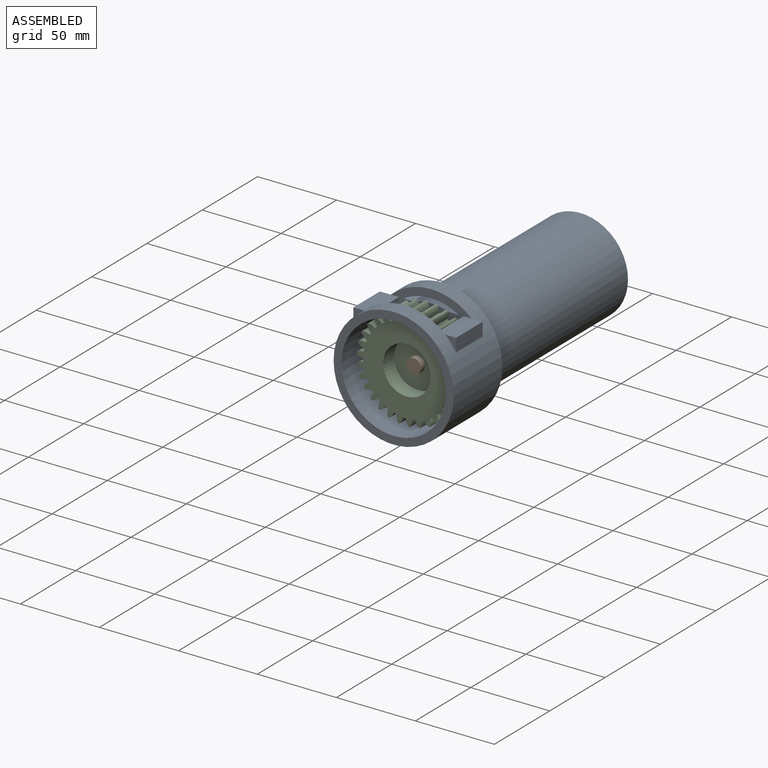
[diagram: assembled view]
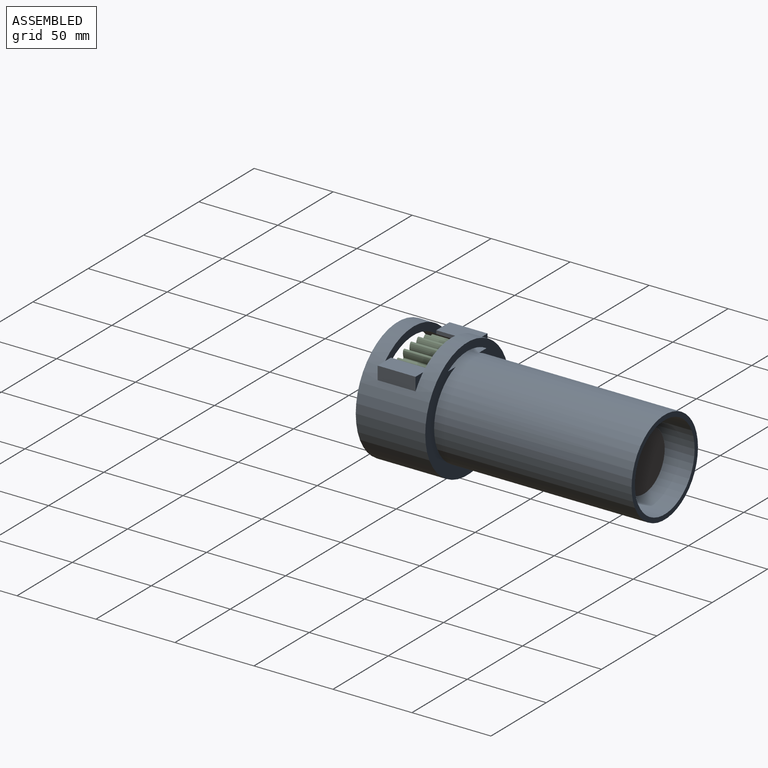
[diagram: assembled view, second angle]
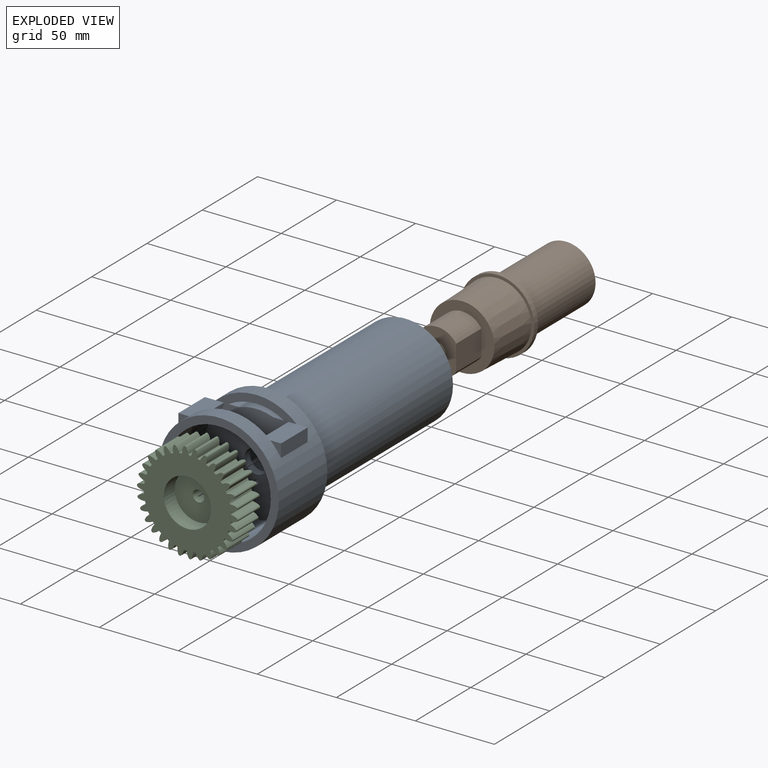
[diagram: exploded view]
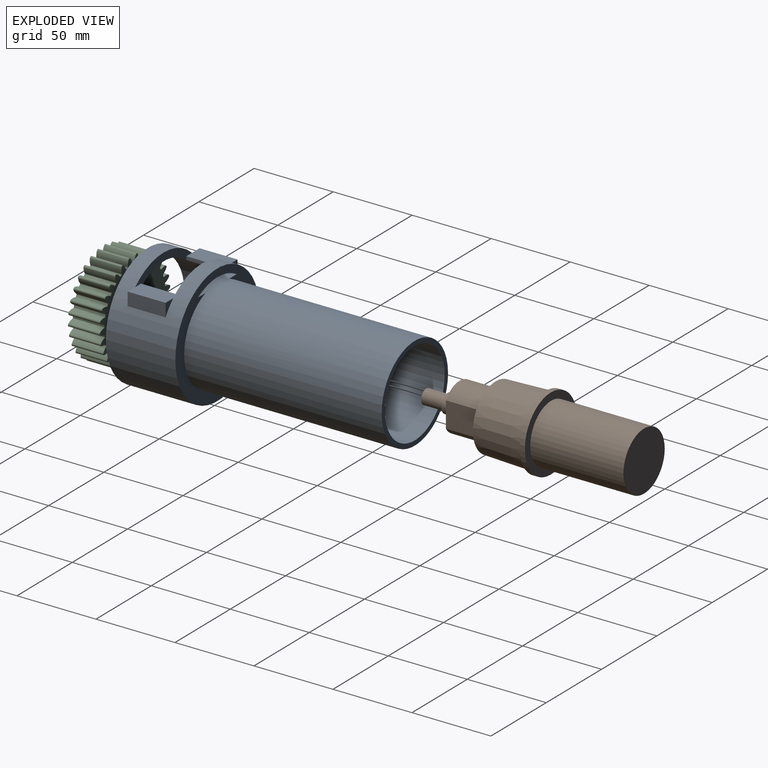
[diagram: exploded view, second angle]
ASSEMBLY  parts=3 mates=2
PART A: 31 faces, bbox 76x169x76 mm
  f0: plane 24x12mm, normal (0,0,1), area 288mm2, adj f3,f25,f26,f27,f28,f29
  f1: cylinder r=33mm len=66mm, axis (0,-1,0), area 5988mm2, adj f3,f20,f28,f29,f30
  f2: cylinder r=38mm len=76mm, axis (0,-1,0), area 8634mm2, adj f3,f16,f20,f22,f23,f24,f25,f26
  f3: plane 71x66mm, normal (0,-1,0), area 3379.6mm2, adj f0,f1,f2,f4,f12,f13,f14,f17
  f4: cylinder r=30mm len=135mm, axis (0,-1,0), area 23782.3mm2, adj f3,f6,f16,f17,f18
  f5: cylinder r=27mm len=110mm, axis (0,-1,0), area 18661.1mm2, adj f6,f11
  f6: plane 60x60mm, normal (0,1,0), area 537.2mm2, adj f4,f5
  f7: cylinder r=14.7mm len=24.6mm, axis (0,-1,0), area 582.9mm2, adj f8,f10,f11,f15
  f8: plane 20x16.1mm, normal (-1,0,0), area 322mm2, adj f7,f9,f11,f15
  f9: cylinder r=14.7mm len=24.6mm, axis (0,-1,0), area 582.9mm2, adj f8,f10,f11,f15
  f10: plane 20x16.1mm, normal (1,0,0), area 322mm2, adj f7,f9,f11,f15
  f11: plane 54x54mm, normal (0,1,0), area 1663.8mm2, adj f5,f7,f8,f9,f10
  f12: cylinder r=7.5mm len=15mm, axis (0,-1,0), area 235.6mm2, adj f3,f15
  f13: cylinder r=1.6mm len=5mm, axis (0,-1,0), area 50.3mm2, adj f3,f15
  f14: cylinder r=1.6mm len=5mm, axis (0,-1,0), area 50.3mm2, adj f3,f15
  f15: plane 29.4x24.6mm, normal (0,1,0), area 433.6mm2, adj f7,f8,f9,f10,f12,f13,f14
  f16: plane 76x76mm, normal (0,1,0), area 1619.6mm2, adj f2,f4,f17,f18,f19
  f17: plane 10x6.69mm, normal (0,0,1), area 66.9mm2, adj f3,f4,f16,f19
  f18: plane 10x6.69mm, normal (0,0,1), area 66.9mm2, adj f3,f4,f16,f19
  f19: cylinder r=33mm len=34.93mm, axis (0,-1,0), area 368.1mm2, adj f3,f16,f17,f18
  f20: plane 76x76mm, normal (0,-1,0), area 1115.3mm2, adj f1,f2
  f21: plane 24x12mm, normal (0,0,1), area 288mm2, adj f3,f22,f23,f24,f28,f30
  f22: plane 24x8.31mm, normal (-1,0,0), area 199.4mm2, adj f2,f21,f23,f24
  f23: plane 8.31x6.81mm, normal (0,-1,0), area 25.6mm2, adj f2,f21,f22
  f24: plane 8.31x6.81mm, normal (0,1,0), area 25.6mm2, adj f2,f21,f22
  f25: plane 24x8.31mm, normal (1,0,0), area 199.4mm2, adj f0,f2,f26,f27
  f26: plane 8.31x6.81mm, normal (0,-1,0), area 25.6mm2, adj f0,f2,f25
  f27: plane 8.31x6.81mm, normal (0,1,0), area 25.6mm2, adj f0,f2,f25
  f28: plane 51.38x12.14mm, normal (0,1,0), area 240.6mm2, adj f0,f1,f2,f21,f29,f30
  f29: plane 24x2.14mm, normal (-1,0,0), area 51.4mm2, adj f0,f1,f3,f28
  f30: plane 24x2.14mm, normal (1,0,0), area 51.4mm2, adj f1,f3,f21,f28
PART B: 16 faces, bbox 47x137.9x47 mm
  f0: plane 41x41mm, normal (0,-1,0), area 699.9mm2, adj f5,f7,f8,f9,f10
  f1: cylinder r=18.65mm len=59mm, axis (0,-1,0), area 6913.7mm2, adj f2,f4
  f2: plane 37.3x37.3mm, normal (0,1,0), area 1092.7mm2, adj f1
  f3: cylinder r=23.5mm len=47mm, axis (0,1,0), area 487.3mm2, adj f4,f6
  f4: plane 47x47mm, normal (0,1,0), area 642.2mm2, adj f1,f3
  f5: cone r=20.5mm half-angle=2deg, axis (0,1,0), area 4195.2mm2, adj f0,f6
  f6: plane 47x47mm, normal (0,-1,0), area 269.2mm2, adj f3,f5
  f7: plane 22.9x16.22mm, normal (1,0,0), area 371.5mm2, adj f0,f8,f10,f11
  f8: cylinder r=14.65mm len=24.4mm, axis (0,1,0), area 660.3mm2, adj f0,f7,f9,f11
  f9: plane 22.9x16.22mm, normal (-1,0,0), area 371.5mm2, adj f0,f8,f10,f11
  f10: cylinder r=14.65mm len=24.4mm, axis (0,1,0), area 660.3mm2, adj f0,f7,f9,f11
  f11: plane 29.3x24.4mm, normal (0,-1,0), area 507.2mm2, adj f7,f8,f9,f10,f12
  f12: cylinder r=6mm len=12mm, axis (0,1,0), area 271.4mm2, adj f11,f13
  f13: plane 12x12mm, normal (0,-1,0), area 46.6mm2, adj f12,f14
  f14: cylinder r=4.6mm len=13.8mm, axis (0,1,0), area 398.9mm2, adj f13,f15
  f15: plane 9.2x9.2mm, normal (0,-1,0), area 66.5mm2, adj f14
PART C: 245 faces, bbox 63.9x20x63.9 mm
  f0: cylinder r=3.6mm len=10mm, axis (0,1,0), area 226.2mm2, adj f35,f244
  f1: cylinder r=27.5mm len=20mm, axis (0,1,0), area 19.4mm2, adj f34,f35,f172,f179
  f2: cylinder r=27.5mm len=20mm, axis (0,1,0), area 19.4mm2, adj f34,f35,f178,f186
  f3: cylinder r=27.5mm len=20mm, axis (0,1,0), area 19.4mm2, adj f34,f35,f185,f193
  f4: cylinder r=27.5mm len=20mm, axis (0,1,0), area 19.4mm2, adj f34,f35,f192,f200
  f5: cylinder r=27.5mm len=20mm, axis (0,1,0), area 19.4mm2, adj f34,f35,f199,f207
  f6: cylinder r=27.5mm len=20mm, axis (0,1,0), area 19.4mm2, adj f34,f35,f206,f214
  f7: cylinder r=27.5mm len=20mm, axis (0,1,0), area 19.4mm2, adj f34,f35,f213,f221
  f8: cylinder r=27.5mm len=20mm, axis (0,1,0), area 19.4mm2, adj f34,f35,f220,f228
  f9: cylinder r=27.5mm len=20mm, axis (0,1,0), area 19.4mm2, adj f34,f35,f227,f235
  f10: cylinder r=27.5mm len=20mm, axis (0,1,0), area 19.4mm2, adj f34,f35,f234,f242
  f11: cylinder r=27.5mm len=20mm, axis (0,1,0), area 19.4mm2, adj f34,f35,f46,f241
  f12: cylinder r=27.5mm len=20mm, axis (0,1,0), area 19.4mm2, adj f34,f35,f45,f53
  f13: cylinder r=27.5mm len=20mm, axis (0,1,0), area 19.4mm2, adj f34,f35,f52,f60
  f14: cylinder r=27.5mm len=20mm, axis (0,1,0), area 19.4mm2, adj f34,f35,f59,f67
  f15: cylinder r=27.5mm len=20mm, axis (0,1,0), area 19.4mm2, adj f34,f35,f66,f74
  f16: cylinder r=27.5mm len=20mm, axis (0,1,0), area 19.4mm2, adj f34,f35,f73,f81
  f17: cylinder r=27.5mm len=20mm, axis (0,1,0), area 19.4mm2, adj f34,f35,f80,f88
  f18: cylinder r=27.5mm len=20mm, axis (0,1,0), area 19.4mm2, adj f34,f35,f87,f95
  f19: cylinder r=27.5mm len=20mm, axis (0,1,0), area 19.4mm2, adj f34,f35,f94,f102
  f20: cylinder r=27.5mm len=20mm, axis (0,1,0), area 19.4mm2, adj f34,f35,f101,f109
  f21: cylinder r=27.5mm len=20mm, axis (0,1,0), area 19.4mm2, adj f34,f35,f108,f116
  f22: cylinder r=27.5mm len=20mm, axis (0,1,0), area 19.4mm2, adj f34,f35,f115,f123
  f23: cylinder r=27.5mm len=20mm, axis (0,1,0), area 19.4mm2, adj f34,f35,f122,f130
  f24: cylinder r=27.5mm len=20mm, axis (0,1,0), area 19.4mm2, adj f34,f35,f129,f137
  f25: cylinder r=27.5mm len=20mm, axis (0,1,0), area 19.4mm2, adj f34,f35,f151,f158
  f26: cylinder r=27.5mm len=20mm, axis (0,1,0), area 19.4mm2, adj f34,f35,f136,f144
  f27: cylinder r=27.5mm len=20mm, axis (0,1,0), area 19.4mm2, adj f34,f35,f39,f143
  f28: cylinder r=27.5mm len=20mm, axis (0,1,0), area 19.4mm2, adj f34,f35,f38,f150
  f29: cylinder r=27.5mm len=20mm, axis (0,1,0), area 19.4mm2, adj f34,f35,f165,f171
  f30: cylinder r=27.5mm len=20mm, axis (0,1,0), area 19.4mm2, adj f34,f35,f157,f164
  f31: cylinder r=7.5mm len=20mm, axis (0,1,0), area 76.8mm2, adj f34,f35,f36,f38
  f32: cylinder r=32mm len=20mm, axis (0,1,0), area 0mm2, adj f34,f35,f36,f37
  f33: cylinder r=7.5mm len=20mm, axis (0,1,0), area 76.8mm2, adj f34,f35,f37,f39
  f34: plane 63.92x63.92mm, normal (0,-1,0), area 2077.6mm2, adj f1,f2,f3,f4,f5,f6,f7,f8
  f35: plane 63.92x63.92mm, normal (0,1,0), area 2743.8mm2, adj f0,f1,f2,f3,f4,f5,f6,f7
  f36: cylinder r=1mm len=20mm, axis (0,1,0), area 20.5mm2, adj f31,f32,f34,f35
  f37: cylinder r=1mm len=20mm, axis (0,1,0), area 20.5mm2, adj f32,f33,f34,f35
  f38: cylinder r=0.5mm len=20mm, axis (0,-1,0), area 14.5mm2, adj f28,f31,f34,f35
  f39: cylinder r=0.5mm len=20mm, axis (0,-1,0), area 14.5mm2, adj f27,f33,f34,f35
  f40: cylinder r=7.5mm len=20mm, axis (0,1,0), area 76.8mm2, adj f34,f35,f41,f45
  f41: cylinder r=1mm len=20mm, axis (0,1,0), area 20.5mm2, adj f34,f35,f40,f42
  f42: cylinder r=32mm len=20mm, axis (0,1,0), area 0mm2, adj f34,f35,f41,f43
  f43: cylinder r=1mm len=20mm, axis (0,1,0), area 20.5mm2, adj f34,f35,f42,f44
  f44: cylinder r=7.5mm len=20mm, axis (0,1,0), area 76.8mm2, adj f34,f35,f43,f46
  f45: cylinder r=0.5mm len=20mm, axis (0,-1,0), area 14.5mm2, adj f12,f34,f35,f40
  f46: cylinder r=0.5mm len=20mm, axis (0,-1,0), area 14.5mm2, adj f11,f34,f35,f44
  f47: cylinder r=7.5mm len=20mm, axis (0,1,0), area 76.8mm2, adj f34,f35,f48,f52
  f48: cylinder r=1mm len=20mm, axis (0,1,0), area 20.5mm2, adj f34,f35,f47,f49
  f49: cylinder r=32mm len=20mm, axis (0,1,0), area 0mm2, adj f34,f35,f48,f50
  f50: cylinder r=1mm len=20mm, axis (0,1,0), area 20.5mm2, adj f34,f35,f49,f51
  f51: cylinder r=7.5mm len=20mm, axis (0,1,0), area 76.8mm2, adj f34,f35,f50,f53
  f52: cylinder r=0.5mm len=20mm, axis (0,-1,0), area 14.5mm2, adj f13,f34,f35,f47
  f53: cylinder r=0.5mm len=20mm, axis (0,-1,0), area 14.5mm2, adj f12,f34,f35,f51
  f54: cylinder r=7.5mm len=20mm, axis (0,1,0), area 76.8mm2, adj f34,f35,f55,f59
  f55: cylinder r=1mm len=20mm, axis (0,1,0), area 20.5mm2, adj f34,f35,f54,f56
  f56: cylinder r=32mm len=20mm, axis (0,1,0), area 0mm2, adj f34,f35,f55,f57
  f57: cylinder r=1mm len=20mm, axis (0,1,0), area 20.5mm2, adj f34,f35,f56,f58
  f58: cylinder r=7.5mm len=20mm, axis (0,1,0), area 76.8mm2, adj f34,f35,f57,f60
  f59: cylinder r=0.5mm len=20mm, axis (0,-1,0), area 14.5mm2, adj f14,f34,f35,f54
  f60: cylinder r=0.5mm len=20mm, axis (0,-1,0), area 14.5mm2, adj f13,f34,f35,f58
  f61: cylinder r=7.5mm len=20mm, axis (0,1,0), area 76.8mm2, adj f34,f35,f62,f66
  f62: cylinder r=1mm len=20mm, axis (0,1,0), area 20.5mm2, adj f34,f35,f61,f63
  f63: cylinder r=32mm len=20mm, axis (0,1,0), area 0mm2, adj f34,f35,f62,f64
  f64: cylinder r=1mm len=20mm, axis (0,1,0), area 20.5mm2, adj f34,f35,f63,f65
  f65: cylinder r=7.5mm len=20mm, axis (0,1,0), area 76.8mm2, adj f34,f35,f64,f67
  f66: cylinder r=0.5mm len=20mm, axis (0,-1,0), area 14.5mm2, adj f15,f34,f35,f61
  f67: cylinder r=0.5mm len=20mm, axis (0,-1,0), area 14.5mm2, adj f14,f34,f35,f65
  f68: cylinder r=7.5mm len=20mm, axis (0,1,0), area 76.8mm2, adj f34,f35,f69,f73
  f69: cylinder r=1mm len=20mm, axis (0,1,0), area 20.5mm2, adj f34,f35,f68,f70
  f70: cylinder r=32mm len=20mm, axis (0,1,0), area 0mm2, adj f34,f35,f69,f71
  f71: cylinder r=1mm len=20mm, axis (0,1,0), area 20.5mm2, adj f34,f35,f70,f72
  f72: cylinder r=7.5mm len=20mm, axis (0,1,0), area 76.8mm2, adj f34,f35,f71,f74
  f73: cylinder r=0.5mm len=20mm, axis (0,-1,0), area 14.5mm2, adj f16,f34,f35,f68
  f74: cylinder r=0.5mm len=20mm, axis (0,-1,0), area 14.5mm2, adj f15,f34,f35,f72
  f75: cylinder r=7.5mm len=20mm, axis (0,1,0), area 76.8mm2, adj f34,f35,f76,f80
  f76: cylinder r=1mm len=20mm, axis (0,1,0), area 20.5mm2, adj f34,f35,f75,f77
  f77: cylinder r=32mm len=20mm, axis (0,1,0), area 0mm2, adj f34,f35,f76,f78
  f78: cylinder r=1mm len=20mm, axis (0,1,0), area 20.5mm2, adj f34,f35,f77,f79
  f79: cylinder r=7.5mm len=20mm, axis (0,1,0), area 76.8mm2, adj f34,f35,f78,f81
  f80: cylinder r=0.5mm len=20mm, axis (0,-1,0), area 14.5mm2, adj f17,f34,f35,f75
  f81: cylinder r=0.5mm len=20mm, axis (0,-1,0), area 14.5mm2, adj f16,f34,f35,f79
  f82: cylinder r=7.5mm len=20mm, axis (0,1,0), area 76.8mm2, adj f34,f35,f83,f87
  f83: cylinder r=1mm len=20mm, axis (0,1,0), area 20.5mm2, adj f34,f35,f82,f84
  f84: cylinder r=32mm len=20mm, axis (0,1,0), area 0mm2, adj f34,f35,f83,f85
  f85: cylinder r=1mm len=20mm, axis (0,1,0), area 20.5mm2, adj f34,f35,f84,f86
  f86: cylinder r=7.5mm len=20mm, axis (0,1,0), area 76.8mm2, adj f34,f35,f85,f88
  f87: cylinder r=0.5mm len=20mm, axis (0,-1,0), area 14.5mm2, adj f18,f34,f35,f82
  f88: cylinder r=0.5mm len=20mm, axis (0,-1,0), area 14.5mm2, adj f17,f34,f35,f86
  f89: cylinder r=7.5mm len=20mm, axis (0,1,0), area 76.8mm2, adj f34,f35,f90,f94
  f90: cylinder r=1mm len=20mm, axis (0,1,0), area 20.5mm2, adj f34,f35,f89,f91
  f91: cylinder r=32mm len=20mm, axis (0,1,0), area 0mm2, adj f34,f35,f90,f92
  f92: cylinder r=1mm len=20mm, axis (0,1,0), area 20.5mm2, adj f34,f35,f91,f93
  f93: cylinder r=7.5mm len=20mm, axis (0,1,0), area 76.8mm2, adj f34,f35,f92,f95
  f94: cylinder r=0.5mm len=20mm, axis (0,-1,0), area 14.5mm2, adj f19,f34,f35,f89
  f95: cylinder r=0.5mm len=20mm, axis (0,-1,0), area 14.5mm2, adj f18,f34,f35,f93
  f96: cylinder r=7.5mm len=20mm, axis (0,1,0), area 76.8mm2, adj f34,f35,f97,f101
  f97: cylinder r=1mm len=20mm, axis (0,1,0), area 20.5mm2, adj f34,f35,f96,f98
  f98: cylinder r=32mm len=20mm, axis (0,1,0), area 0mm2, adj f34,f35,f97,f99
  f99: cylinder r=1mm len=20mm, axis (0,1,0), area 20.5mm2, adj f34,f35,f98,f100
  f100: cylinder r=7.5mm len=20mm, axis (0,1,0), area 76.8mm2, adj f34,f35,f99,f102
  f101: cylinder r=0.5mm len=20mm, axis (0,-1,0), area 14.5mm2, adj f20,f34,f35,f96
  f102: cylinder r=0.5mm len=20mm, axis (0,-1,0), area 14.5mm2, adj f19,f34,f35,f100
  f103: cylinder r=7.5mm len=20mm, axis (0,1,0), area 76.8mm2, adj f34,f35,f104,f108
  f104: cylinder r=1mm len=20mm, axis (0,1,0), area 20.5mm2, adj f34,f35,f103,f105
  f105: cylinder r=32mm len=20mm, axis (0,1,0), area 0mm2, adj f34,f35,f104,f106
  f106: cylinder r=1mm len=20mm, axis (0,1,0), area 20.5mm2, adj f34,f35,f105,f107
  f107: cylinder r=7.5mm len=20mm, axis (0,1,0), area 76.8mm2, adj f34,f35,f106,f109
  f108: cylinder r=0.5mm len=20mm, axis (0,-1,0), area 14.5mm2, adj f21,f34,f35,f103
  f109: cylinder r=0.5mm len=20mm, axis (0,-1,0), area 14.5mm2, adj f20,f34,f35,f107
  f110: cylinder r=7.5mm len=20mm, axis (0,1,0), area 76.8mm2, adj f34,f35,f111,f115
  f111: cylinder r=1mm len=20mm, axis (0,1,0), area 20.5mm2, adj f34,f35,f110,f112
  f112: cylinder r=32mm len=20mm, axis (0,1,0), area 0mm2, adj f34,f35,f111,f113
  f113: cylinder r=1mm len=20mm, axis (0,1,0), area 20.5mm2, adj f34,f35,f112,f114
  f114: cylinder r=7.5mm len=20mm, axis (0,1,0), area 76.8mm2, adj f34,f35,f113,f116
  f115: cylinder r=0.5mm len=20mm, axis (0,-1,0), area 14.5mm2, adj f22,f34,f35,f110
  f116: cylinder r=0.5mm len=20mm, axis (0,-1,0), area 14.5mm2, adj f21,f34,f35,f114
  f117: cylinder r=7.5mm len=20mm, axis (0,1,0), area 76.8mm2, adj f34,f35,f118,f122
  f118: cylinder r=1mm len=20mm, axis (0,1,0), area 20.5mm2, adj f34,f35,f117,f119
  f119: cylinder r=32mm len=20mm, axis (0,1,0), area 0mm2, adj f34,f35,f118,f120
  f120: cylinder r=1mm len=20mm, axis (0,1,0), area 20.5mm2, adj f34,f35,f119,f121
  f121: cylinder r=7.5mm len=20mm, axis (0,1,0), area 76.8mm2, adj f34,f35,f120,f123
  f122: cylinder r=0.5mm len=20mm, axis (0,-1,0), area 14.5mm2, adj f23,f34,f35,f117
  f123: cylinder r=0.5mm len=20mm, axis (0,-1,0), area 14.5mm2, adj f22,f34,f35,f121
  f124: cylinder r=7.5mm len=20mm, axis (0,1,0), area 76.8mm2, adj f34,f35,f125,f129
  f125: cylinder r=1mm len=20mm, axis (0,1,0), area 20.5mm2, adj f34,f35,f124,f126
  f126: cylinder r=32mm len=20mm, axis (0,1,0), area 0mm2, adj f34,f35,f125,f127
  f127: cylinder r=1mm len=20mm, axis (0,1,0), area 20.5mm2, adj f34,f35,f126,f128
  f128: cylinder r=7.5mm len=20mm, axis (0,1,0), area 76.8mm2, adj f34,f35,f127,f130
  f129: cylinder r=0.5mm len=20mm, axis (0,-1,0), area 14.5mm2, adj f24,f34,f35,f124
  f130: cylinder r=0.5mm len=20mm, axis (0,-1,0), area 14.5mm2, adj f23,f34,f35,f128
  f131: cylinder r=7.5mm len=20mm, axis (0,1,0), area 76.8mm2, adj f34,f35,f132,f136
  f132: cylinder r=1mm len=20mm, axis (0,1,0), area 20.5mm2, adj f34,f35,f131,f133
  f133: cylinder r=32mm len=20mm, axis (0,1,0), area 0mm2, adj f34,f35,f132,f134
  f134: cylinder r=1mm len=20mm, axis (0,1,0), area 20.5mm2, adj f34,f35,f133,f135
  f135: cylinder r=7.5mm len=20mm, axis (0,1,0), area 76.8mm2, adj f34,f35,f134,f137
  f136: cylinder r=0.5mm len=20mm, axis (0,-1,0), area 14.5mm2, adj f26,f34,f35,f131
  f137: cylinder r=0.5mm len=20mm, axis (0,-1,0), area 14.5mm2, adj f24,f34,f35,f135
  f138: cylinder r=7.5mm len=20mm, axis (0,1,0), area 76.8mm2, adj f34,f35,f139,f143
  f139: cylinder r=1mm len=20mm, axis (0,1,0), area 20.5mm2, adj f34,f35,f138,f140
  f140: cylinder r=32mm len=20mm, axis (0,1,0), area 0mm2, adj f34,f35,f139,f141
  f141: cylinder r=1mm len=20mm, axis (0,1,0), area 20.5mm2, adj f34,f35,f140,f142
  f142: cylinder r=7.5mm len=20mm, axis (0,1,0), area 76.8mm2, adj f34,f35,f141,f144
  f143: cylinder r=0.5mm len=20mm, axis (0,-1,0), area 14.5mm2, adj f27,f34,f35,f138
  f144: cylinder r=0.5mm len=20mm, axis (0,-1,0), area 14.5mm2, adj f26,f34,f35,f142
  f145: cylinder r=7.5mm len=20mm, axis (0,1,0), area 76.8mm2, adj f34,f35,f146,f151
  f146: cylinder r=1mm len=20mm, axis (0,1,0), area 20.5mm2, adj f34,f35,f145,f147
  f147: cylinder r=32mm len=20mm, axis (0,1,0), area 0mm2, adj f34,f35,f146,f148
  f148: cylinder r=1mm len=20mm, axis (0,1,0), area 20.5mm2, adj f34,f35,f147,f149
  f149: cylinder r=7.5mm len=20mm, axis (0,1,0), area 76.8mm2, adj f34,f35,f148,f150
  f150: cylinder r=0.5mm len=20mm, axis (0,-1,0), area 14.5mm2, adj f28,f34,f35,f149
  f151: cylinder r=0.5mm len=20mm, axis (0,-1,0), area 14.5mm2, adj f25,f34,f35,f145
  f152: cylinder r=7.5mm len=20mm, axis (0,1,0), area 76.8mm2, adj f34,f35,f153,f157
  f153: cylinder r=1mm len=20mm, axis (0,1,0), area 20.5mm2, adj f34,f35,f152,f154
  f154: cylinder r=32mm len=20mm, axis (0,1,0), area 0mm2, adj f34,f35,f153,f155
  f155: cylinder r=1mm len=20mm, axis (0,1,0), area 20.5mm2, adj f34,f35,f154,f156
  f156: cylinder r=7.5mm len=20mm, axis (0,1,0), area 76.8mm2, adj f34,f35,f155,f158
  f157: cylinder r=0.5mm len=20mm, axis (0,-1,0), area 14.5mm2, adj f30,f34,f35,f152
  f158: cylinder r=0.5mm len=20mm, axis (0,-1,0), area 14.5mm2, adj f25,f34,f35,f156
  f159: cylinder r=7.5mm len=20mm, axis (0,1,0), area 76.8mm2, adj f34,f35,f160,f165
  f160: cylinder r=1mm len=20mm, axis (0,1,0), area 20.5mm2, adj f34,f35,f159,f161
  f161: cylinder r=32mm len=20mm, axis (0,1,0), area 0mm2, adj f34,f35,f160,f162
  f162: cylinder r=1mm len=20mm, axis (0,1,0), area 20.5mm2, adj f34,f35,f161,f163
  f163: cylinder r=7.5mm len=20mm, axis (0,1,0), area 76.8mm2, adj f34,f35,f162,f164
  f164: cylinder r=0.5mm len=20mm, axis (0,-1,0), area 14.5mm2, adj f30,f34,f35,f163
  f165: cylinder r=0.5mm len=20mm, axis (0,-1,0), area 14.5mm2, adj f29,f34,f35,f159
  f166: cylinder r=7.5mm len=20mm, axis (0,1,0), area 76.8mm2, adj f34,f35,f167,f172
  f167: cylinder r=1mm len=20mm, axis (0,1,0), area 20.5mm2, adj f34,f35,f166,f168
  f168: cylinder r=32mm len=20mm, axis (0,1,0), area 0mm2, adj f34,f35,f167,f169
  f169: cylinder r=1mm len=20mm, axis (0,1,0), area 20.5mm2, adj f34,f35,f168,f170
  f170: cylinder r=7.5mm len=20mm, axis (0,1,0), area 76.8mm2, adj f34,f35,f169,f171
  f171: cylinder r=0.5mm len=20mm, axis (0,-1,0), area 14.5mm2, adj f29,f34,f35,f170
  f172: cylinder r=0.5mm len=20mm, axis (0,-1,0), area 14.5mm2, adj f1,f34,f35,f166
  f173: cylinder r=7.5mm len=20mm, axis (0,1,0), area 76.8mm2, adj f34,f35,f174,f178
  f174: cylinder r=1mm len=20mm, axis (0,1,0), area 20.5mm2, adj f34,f35,f173,f175
  f175: cylinder r=32mm len=20mm, axis (0,1,0), area 0mm2, adj f34,f35,f174,f176
  f176: cylinder r=1mm len=20mm, axis (0,1,0), area 20.5mm2, adj f34,f35,f175,f177
  f177: cylinder r=7.5mm len=20mm, axis (0,1,0), area 76.8mm2, adj f34,f35,f176,f179
  f178: cylinder r=0.5mm len=20mm, axis (0,-1,0), area 14.5mm2, adj f2,f34,f35,f173
  f179: cylinder r=0.5mm len=20mm, axis (0,-1,0), area 14.5mm2, adj f1,f34,f35,f177
  f180: cylinder r=7.5mm len=20mm, axis (0,1,0), area 76.8mm2, adj f34,f35,f181,f185
  f181: cylinder r=1mm len=20mm, axis (0,1,0), area 20.5mm2, adj f34,f35,f180,f182
  f182: cylinder r=32mm len=20mm, axis (0,1,0), area 0mm2, adj f34,f35,f181,f183
  f183: cylinder r=1mm len=20mm, axis (0,1,0), area 20.5mm2, adj f34,f35,f182,f184
  f184: cylinder r=7.5mm len=20mm, axis (0,1,0), area 76.8mm2, adj f34,f35,f183,f186
  f185: cylinder r=0.5mm len=20mm, axis (0,-1,0), area 14.5mm2, adj f3,f34,f35,f180
  f186: cylinder r=0.5mm len=20mm, axis (0,-1,0), area 14.5mm2, adj f2,f34,f35,f184
  f187: cylinder r=7.5mm len=20mm, axis (0,1,0), area 76.8mm2, adj f34,f35,f188,f192
  f188: cylinder r=1mm len=20mm, axis (0,1,0), area 20.5mm2, adj f34,f35,f187,f189
  f189: cylinder r=32mm len=20mm, axis (0,1,0), area 0mm2, adj f34,f35,f188,f190
  f190: cylinder r=1mm len=20mm, axis (0,1,0), area 20.5mm2, adj f34,f35,f189,f191
  f191: cylinder r=7.5mm len=20mm, axis (0,1,0), area 76.8mm2, adj f34,f35,f190,f193
  f192: cylinder r=0.5mm len=20mm, axis (0,-1,0), area 14.5mm2, adj f4,f34,f35,f187
  f193: cylinder r=0.5mm len=20mm, axis (0,-1,0), area 14.5mm2, adj f3,f34,f35,f191
  f194: cylinder r=7.5mm len=20mm, axis (0,1,0), area 76.8mm2, adj f34,f35,f195,f199
  f195: cylinder r=1mm len=20mm, axis (0,1,0), area 20.5mm2, adj f34,f35,f194,f196
  f196: cylinder r=32mm len=20mm, axis (0,1,0), area 0mm2, adj f34,f35,f195,f197
  f197: cylinder r=1mm len=20mm, axis (0,1,0), area 20.5mm2, adj f34,f35,f196,f198
  f198: cylinder r=7.5mm len=20mm, axis (0,1,0), area 76.8mm2, adj f34,f35,f197,f200
  f199: cylinder r=0.5mm len=20mm, axis (0,-1,0), area 14.5mm2, adj f5,f34,f35,f194
  f200: cylinder r=0.5mm len=20mm, axis (0,-1,0), area 14.5mm2, adj f4,f34,f35,f198
  f201: cylinder r=7.5mm len=20mm, axis (0,1,0), area 76.8mm2, adj f34,f35,f202,f206
  f202: cylinder r=1mm len=20mm, axis (0,1,0), area 20.5mm2, adj f34,f35,f201,f203
  f203: cylinder r=32mm len=20mm, axis (0,1,0), area 0mm2, adj f34,f35,f202,f204
  f204: cylinder r=1mm len=20mm, axis (0,1,0), area 20.5mm2, adj f34,f35,f203,f205
  f205: cylinder r=7.5mm len=20mm, axis (0,1,0), area 76.8mm2, adj f34,f35,f204,f207
  f206: cylinder r=0.5mm len=20mm, axis (0,-1,0), area 14.5mm2, adj f6,f34,f35,f201
  f207: cylinder r=0.5mm len=20mm, axis (0,-1,0), area 14.5mm2, adj f5,f34,f35,f205
  f208: cylinder r=7.5mm len=20mm, axis (0,1,0), area 76.8mm2, adj f34,f35,f209,f213
  f209: cylinder r=1mm len=20mm, axis (0,1,0), area 20.5mm2, adj f34,f35,f208,f210
  f210: cylinder r=32mm len=20mm, axis (0,1,0), area 0mm2, adj f34,f35,f209,f211
  f211: cylinder r=1mm len=20mm, axis (0,1,0), area 20.5mm2, adj f34,f35,f210,f212
  f212: cylinder r=7.5mm len=20mm, axis (0,1,0), area 76.8mm2, adj f34,f35,f211,f214
  f213: cylinder r=0.5mm len=20mm, axis (0,-1,0), area 14.5mm2, adj f7,f34,f35,f208
  f214: cylinder r=0.5mm len=20mm, axis (0,-1,0), area 14.5mm2, adj f6,f34,f35,f212
  f215: cylinder r=7.5mm len=20mm, axis (0,1,0), area 76.8mm2, adj f34,f35,f216,f220
  f216: cylinder r=1mm len=20mm, axis (0,1,0), area 20.5mm2, adj f34,f35,f215,f217
  f217: cylinder r=32mm len=20mm, axis (0,1,0), area 0mm2, adj f34,f35,f216,f218
  f218: cylinder r=1mm len=20mm, axis (0,1,0), area 20.5mm2, adj f34,f35,f217,f219
  f219: cylinder r=7.5mm len=20mm, axis (0,1,0), area 76.8mm2, adj f34,f35,f218,f221
  f220: cylinder r=0.5mm len=20mm, axis (0,-1,0), area 14.5mm2, adj f8,f34,f35,f215
  f221: cylinder r=0.5mm len=20mm, axis (0,-1,0), area 14.5mm2, adj f7,f34,f35,f219
  f222: cylinder r=7.5mm len=20mm, axis (0,1,0), area 76.8mm2, adj f34,f35,f223,f227
  f223: cylinder r=1mm len=20mm, axis (0,1,0), area 20.5mm2, adj f34,f35,f222,f224
  f224: cylinder r=32mm len=20mm, axis (0,1,0), area 0mm2, adj f34,f35,f223,f225
  f225: cylinder r=1mm len=20mm, axis (0,1,0), area 20.5mm2, adj f34,f35,f224,f226
  f226: cylinder r=7.5mm len=20mm, axis (0,1,0), area 76.8mm2, adj f34,f35,f225,f228
  f227: cylinder r=0.5mm len=20mm, axis (0,-1,0), area 14.5mm2, adj f9,f34,f35,f222
  f228: cylinder r=0.5mm len=20mm, axis (0,-1,0), area 14.5mm2, adj f8,f34,f35,f226
  f229: cylinder r=7.5mm len=20mm, axis (0,1,0), area 76.8mm2, adj f34,f35,f230,f234
  f230: cylinder r=1mm len=20mm, axis (0,1,0), area 20.5mm2, adj f34,f35,f229,f231
  f231: cylinder r=32mm len=20mm, axis (0,1,0), area 0mm2, adj f34,f35,f230,f232
  f232: cylinder r=1mm len=20mm, axis (0,1,0), area 20.5mm2, adj f34,f35,f231,f233
  f233: cylinder r=7.5mm len=20mm, axis (0,1,0), area 76.8mm2, adj f34,f35,f232,f235
  f234: cylinder r=0.5mm len=20mm, axis (0,-1,0), area 14.5mm2, adj f10,f34,f35,f229
  f235: cylinder r=0.5mm len=20mm, axis (0,-1,0), area 14.5mm2, adj f9,f34,f35,f233
  f236: cylinder r=7.5mm len=20mm, axis (0,1,0), area 76.8mm2, adj f34,f35,f239,f241
  f237: cylinder r=32mm len=20mm, axis (0,1,0), area 0mm2, adj f34,f35,f239,f240
  f238: cylinder r=7.5mm len=20mm, axis (0,1,0), area 76.8mm2, adj f34,f35,f240,f242
  f239: cylinder r=1mm len=20mm, axis (0,1,0), area 20.5mm2, adj f34,f35,f236,f237
  f240: cylinder r=1mm len=20mm, axis (0,1,0), area 20.5mm2, adj f34,f35,f237,f238
  f241: cylinder r=0.5mm len=20mm, axis (0,-1,0), area 14.5mm2, adj f11,f34,f35,f236
  f242: cylinder r=0.5mm len=20mm, axis (0,-1,0), area 14.5mm2, adj f10,f34,f35,f238
  f243: cylinder r=15mm len=30mm, axis (0,-1,0), area 942.5mm2, adj f34,f244
  f244: plane 30x30mm, normal (0,-1,0), area 666.1mm2, adj f0,f243
PLACE A at identity
PLACE B t=(0,62.9,0)mm
PLACE C t=(0,-2.2,0)mm
MATE fastened B.f1 <-> A.f1  axis (0,-1,0) through (0,5,0)mm
MATE fastened C.f0 <-> B.f1  axis (0,1,0) through (0,-2.2,0)mm
